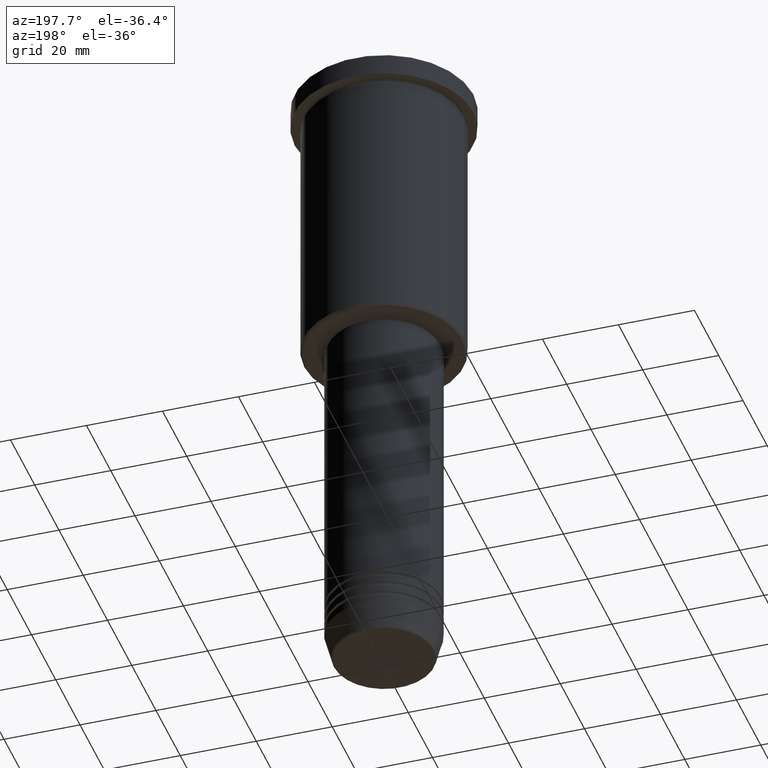
[diagram: clean part render]
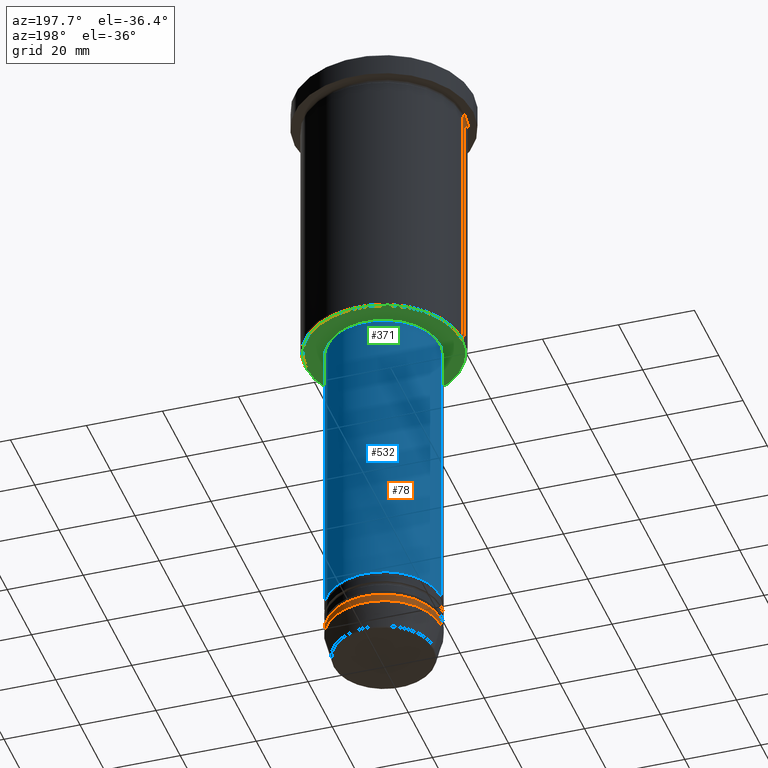
[diagram: same view with three faces highlighted in distinct colors, each labeled with its STEP entity id]
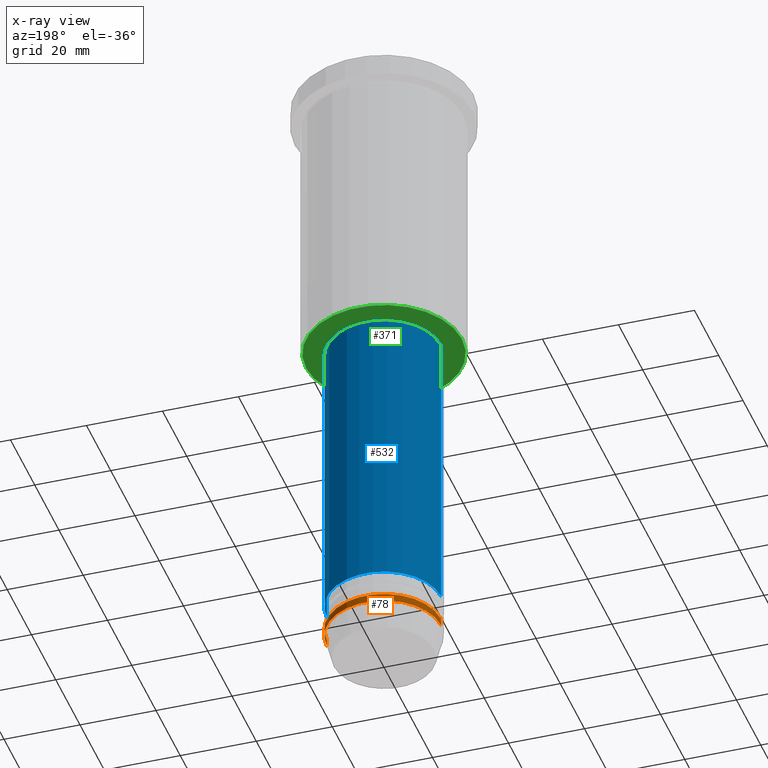
[diagram: x-ray of the same camera — body ghosted, the three highlighted faces saturated]
A machine part, auxiliary view with three faces highlighted in distinct colors.
The next image is the same camera in x-ray (body ghosted, the three faces saturated) — at least one of them is partly hidden behind the body in this view.
Their STEP definitions:

[orange] entity #78 — the highlighted cylindrical surface (partial cylindrical patch) has radius 15 mm, axis along (-0, -0, 1).
#20 = VERTEX_POINT ( 'NONE', #647 ) ;
#78 = ADVANCED_FACE ( 'NONE', ( #586 ), #514, .T. ) ;
#111 = AXIS2_PLACEMENT_3D ( 'NONE', #945, #504, #495 ) ;
#139 = EDGE_LOOP ( 'NONE', ( #839, #230, #757, #984 ) ) ;
#143 = DIRECTION ( 'NONE',  ( -0.000000000000000000, -0.000000000000000000, 1.000000000000000000 ) ) ;
#150 = VECTOR ( 'NONE', #457, 1000.000000000000000 ) ;
#205 = AXIS2_PLACEMENT_3D ( 'NONE', #677, #325, #967 ) ;
#230 = ORIENTED_EDGE ( 'NONE', *, *, #749, .T. ) ;
#286 = VERTEX_POINT ( 'NONE', #957 ) ;
#325 = DIRECTION ( 'NONE',  ( -0.000000000000000000, -0.000000000000000000, 1.000000000000000000 ) ) ;
#370 = CARTESIAN_POINT ( 'NONE',  ( -15.00000000000000000, 1.836970198721029589E-15, -164.0000000000000000 ) ) ;
#440 = CARTESIAN_POINT ( 'NONE',  ( 15.00000000000000000, 0.000000000000000000, 0.000000000000000000 ) ) ;
#448 = CARTESIAN_POINT ( 'NONE',  ( -15.00000000000000000, 1.836970198721029589E-15, 0.000000000000000000 ) ) ;
#457 = DIRECTION ( 'NONE',  ( -0.000000000000000000, -0.000000000000000000, 1.000000000000000000 ) ) ;
#495 = DIRECTION ( 'NONE',  ( 1.000000000000000000, 0.000000000000000000, 0.000000000000000000 ) ) ;
#501 = DIRECTION ( 'NONE',  ( 1.000000000000000000, 0.000000000000000000, 0.000000000000000000 ) ) ;
#504 = DIRECTION ( 'NONE',  ( -0.000000000000000000, -0.000000000000000000, 1.000000000000000000 ) ) ;
#505 = AXIS2_PLACEMENT_3D ( 'NONE', #958, #143, #501 ) ;
#514 = CYLINDRICAL_SURFACE ( 'NONE', #505, 15.00000000000000000 ) ;
#529 = LINE ( 'NONE', #448, #150 ) ;
#586 = FACE_OUTER_BOUND ( 'NONE', #139, .T. ) ;
#610 = CARTESIAN_POINT ( 'NONE',  ( 15.00000000000000000, 0.000000000000000000, -162.0000000000000000 ) ) ;
#617 = VECTOR ( 'NONE', #800, 1000.000000000000000 ) ;
#645 = VERTEX_POINT ( 'NONE', #370 ) ;
#647 = CARTESIAN_POINT ( 'NONE',  ( 15.00000000000000000, 0.000000000000000000, -164.0000000000000000 ) ) ;
#677 = CARTESIAN_POINT ( 'NONE',  ( 0.000000000000000000, 0.000000000000000000, -162.0000000000000000 ) ) ;
#690 = EDGE_CURVE ( 'NONE', #20, #741, #988, .T. ) ;
#741 = VERTEX_POINT ( 'NONE', #610 ) ;
#749 = EDGE_CURVE ( 'NONE', #645, #286, #529, .T. ) ;
#757 = ORIENTED_EDGE ( 'NONE', *, *, #970, .F. ) ;
#800 = DIRECTION ( 'NONE',  ( -0.000000000000000000, -0.000000000000000000, 1.000000000000000000 ) ) ;
#839 = ORIENTED_EDGE ( 'NONE', *, *, #1028, .T. ) ;
#903 = CIRCLE ( 'NONE', #205, 15.00000000000000000 ) ;
#945 = CARTESIAN_POINT ( 'NONE',  ( 0.000000000000000000, 0.000000000000000000, -164.0000000000000000 ) ) ;
#957 = CARTESIAN_POINT ( 'NONE',  ( -15.00000000000000000, 1.836970198721029589E-15, -162.0000000000000000 ) ) ;
#958 = CARTESIAN_POINT ( 'NONE',  ( 0.000000000000000000, 0.000000000000000000, 0.000000000000000000 ) ) ;
#967 = DIRECTION ( 'NONE',  ( 1.000000000000000000, 0.000000000000000000, 0.000000000000000000 ) ) ;
#970 = EDGE_CURVE ( 'NONE', #741, #286, #903, .T. ) ;
#984 = ORIENTED_EDGE ( 'NONE', *, *, #690, .F. ) ;
#988 = LINE ( 'NONE', #440, #617 ) ;
#1028 = EDGE_CURVE ( 'NONE', #20, #645, #1096, .T. ) ;
#1096 = CIRCLE ( 'NONE', #111, 15.00000000000000000 ) ;

[blue] entity #532 — the highlighted cylindrical surface (partial cylindrical patch) has radius 15 mm, axis along (-0, -0, 1).
#41 = FACE_OUTER_BOUND ( 'NONE', #856, .T. ) ;
#54 = VERTEX_POINT ( 'NONE', #138 ) ;
#131 = EDGE_CURVE ( 'NONE', #686, #859, #519, .T. ) ;
#134 = LINE ( 'NONE', #849, #697 ) ;
#138 = CARTESIAN_POINT ( 'NONE',  ( 15.00000000000000000, 0.000000000000000000, -77.00000000000001421 ) ) ;
#141 = CARTESIAN_POINT ( 'NONE',  ( -15.00000000000000000, 1.836970198721029589E-15, 0.000000000000000000 ) ) ;
#156 = CARTESIAN_POINT ( 'NONE',  ( 0.000000000000000000, 0.000000000000000000, -77.00000000000001421 ) ) ;
#168 = DIRECTION ( 'NONE',  ( 1.000000000000000000, 0.000000000000000000, 0.000000000000000000 ) ) ;
#214 = DIRECTION ( 'NONE',  ( -0.000000000000000000, -0.000000000000000000, 1.000000000000000000 ) ) ;
#249 = ORIENTED_EDGE ( 'NONE', *, *, #591, .T. ) ;
#321 = AXIS2_PLACEMENT_3D ( 'NONE', #1128, #1029, #928 ) ;
#369 = ORIENTED_EDGE ( 'NONE', *, *, #615, .F. ) ;
#416 = DIRECTION ( 'NONE',  ( -0.000000000000000000, -0.000000000000000000, 1.000000000000000000 ) ) ;
#519 = LINE ( 'NONE', #141, #900 ) ;
#532 = ADVANCED_FACE ( 'NONE', ( #41 ), #643, .T. ) ;
#546 = EDGE_CURVE ( 'NONE', #548, #54, #134, .T. ) ;
#548 = VERTEX_POINT ( 'NONE', #652 ) ;
#591 = EDGE_CURVE ( 'NONE', #548, #686, #816, .T. ) ;
#615 = EDGE_CURVE ( 'NONE', #54, #859, #661, .T. ) ;
#638 = CARTESIAN_POINT ( 'NONE',  ( -15.00000000000000000, 1.836970198721029589E-15, -77.00000000000001421 ) ) ;
#643 = CYLINDRICAL_SURFACE ( 'NONE', #963, 15.00000000000000000 ) ;
#652 = CARTESIAN_POINT ( 'NONE',  ( 15.00000000000000000, 0.000000000000000000, -154.9999999999999716 ) ) ;
#661 = CIRCLE ( 'NONE', #882, 15.00000000000000000 ) ;
#686 = VERTEX_POINT ( 'NONE', #1181 ) ;
#697 = VECTOR ( 'NONE', #948, 1000.000000000000000 ) ;
#816 = CIRCLE ( 'NONE', #321, 15.00000000000000000 ) ;
#840 = ORIENTED_EDGE ( 'NONE', *, *, #131, .T. ) ;
#847 = ORIENTED_EDGE ( 'NONE', *, *, #546, .F. ) ;
#849 = CARTESIAN_POINT ( 'NONE',  ( 15.00000000000000000, 0.000000000000000000, 0.000000000000000000 ) ) ;
#856 = EDGE_LOOP ( 'NONE', ( #249, #840, #369, #847 ) ) ;
#859 = VERTEX_POINT ( 'NONE', #638 ) ;
#882 = AXIS2_PLACEMENT_3D ( 'NONE', #156, #416, #973 ) ;
#900 = VECTOR ( 'NONE', #1142, 1000.000000000000000 ) ;
#928 = DIRECTION ( 'NONE',  ( 1.000000000000000000, 0.000000000000000000, 0.000000000000000000 ) ) ;
#948 = DIRECTION ( 'NONE',  ( -0.000000000000000000, -0.000000000000000000, 1.000000000000000000 ) ) ;
#963 = AXIS2_PLACEMENT_3D ( 'NONE', #1034, #214, #168 ) ;
#973 = DIRECTION ( 'NONE',  ( 1.000000000000000000, 0.000000000000000000, 0.000000000000000000 ) ) ;
#1029 = DIRECTION ( 'NONE',  ( -0.000000000000000000, -0.000000000000000000, 1.000000000000000000 ) ) ;
#1034 = CARTESIAN_POINT ( 'NONE',  ( 0.000000000000000000, 0.000000000000000000, 0.000000000000000000 ) ) ;
#1128 = CARTESIAN_POINT ( 'NONE',  ( 0.000000000000000000, 0.000000000000000000, -154.9999999999999716 ) ) ;
#1142 = DIRECTION ( 'NONE',  ( -0.000000000000000000, -0.000000000000000000, 1.000000000000000000 ) ) ;
#1181 = CARTESIAN_POINT ( 'NONE',  ( -15.00000000000000000, 1.836970198721029589E-15, -154.9999999999999716 ) ) ;

[green] entity #371 — the highlighted planar face has unit normal (0, 0, -1).
#26 = CIRCLE ( 'NONE', #166, 14.49999999999999822 ) ;
#37 = DIRECTION ( 'NONE',  ( 0.000000000000000000, 0.000000000000000000, -1.000000000000000000 ) ) ;
#53 = DIRECTION ( 'NONE',  ( -0.000000000000000000, -0.000000000000000000, 1.000000000000000000 ) ) ;
#82 = EDGE_CURVE ( 'NONE', #933, #255, #26, .T. ) ;
#83 = FACE_OUTER_BOUND ( 'NONE', #991, .T. ) ;
#97 = PLANE ( 'NONE',  #396 ) ;
#166 = AXIS2_PLACEMENT_3D ( 'NONE', #787, #53, #1149 ) ;
#222 = CIRCLE ( 'NONE', #472, 20.49999999999998934 ) ;
#225 = DIRECTION ( 'NONE',  ( 0.000000000000000000, 0.000000000000000000, -1.000000000000000000 ) ) ;
#255 = VERTEX_POINT ( 'NONE', #344 ) ;
#295 = CARTESIAN_POINT ( 'NONE',  ( 0.000000000000000000, 21.00000000000000000, -76.00000000000000000 ) ) ;
#296 = DIRECTION ( 'NONE',  ( -0.000000000000000000, -0.000000000000000000, 1.000000000000000000 ) ) ;
#299 = ORIENTED_EDGE ( 'NONE', *, *, #412, .T. ) ;
#344 = CARTESIAN_POINT ( 'NONE',  ( -14.49999999999999822, 1.775737858763662015E-15, -76.00000000000000000 ) ) ;
#371 = ADVANCED_FACE ( 'NONE', ( #83, #625 ), #97, .T. ) ;
#396 = AXIS2_PLACEMENT_3D ( 'NONE', #295, #842, #908 ) ;
#412 = EDGE_CURVE ( 'NONE', #1113, #669, #815, .T. ) ;
#446 = ORIENTED_EDGE ( 'NONE', *, *, #82, .T. ) ;
#472 = AXIS2_PLACEMENT_3D ( 'NONE', #1019, #37, #936 ) ;
#571 = EDGE_CURVE ( 'NONE', #669, #1113, #222, .T. ) ;
#624 = CARTESIAN_POINT ( 'NONE',  ( 20.49999999999998934, 0.000000000000000000, -76.00000000000000000 ) ) ;
#625 = FACE_BOUND ( 'NONE', #1172, .T. ) ;
#632 = CARTESIAN_POINT ( 'NONE',  ( -20.49999999999998934, 2.541142108230757480E-15, -76.00000000000000000 ) ) ;
#660 = DIRECTION ( 'NONE',  ( 1.000000000000000000, 0.000000000000000000, 0.000000000000000000 ) ) ;
#669 = VERTEX_POINT ( 'NONE', #632 ) ;
#713 = CIRCLE ( 'NONE', #986, 14.49999999999999822 ) ;
#773 = CARTESIAN_POINT ( 'NONE',  ( 14.49999999999999822, 0.000000000000000000, -76.00000000000000000 ) ) ;
#787 = CARTESIAN_POINT ( 'NONE',  ( 0.000000000000000000, 0.000000000000000000, -76.00000000000000000 ) ) ;
#815 = CIRCLE ( 'NONE', #1135, 20.49999999999998934 ) ;
#842 = DIRECTION ( 'NONE',  ( 0.000000000000000000, 0.000000000000000000, -1.000000000000000000 ) ) ;
#899 = EDGE_CURVE ( 'NONE', #255, #933, #713, .T. ) ;
#908 = DIRECTION ( 'NONE',  ( -1.000000000000000000, 0.000000000000000000, -0.000000000000000000 ) ) ;
#933 = VERTEX_POINT ( 'NONE', #773 ) ;
#936 = DIRECTION ( 'NONE',  ( -1.000000000000000000, 0.000000000000000000, 0.000000000000000000 ) ) ;
#986 = AXIS2_PLACEMENT_3D ( 'NONE', #1112, #296, #660 ) ;
#991 = EDGE_LOOP ( 'NONE', ( #299, #1036 ) ) ;
#1019 = CARTESIAN_POINT ( 'NONE',  ( 0.000000000000000000, 0.000000000000000000, -76.00000000000000000 ) ) ;
#1036 = ORIENTED_EDGE ( 'NONE', *, *, #571, .T. ) ;
#1042 = DIRECTION ( 'NONE',  ( -1.000000000000000000, 0.000000000000000000, 0.000000000000000000 ) ) ;
#1112 = CARTESIAN_POINT ( 'NONE',  ( 0.000000000000000000, 0.000000000000000000, -76.00000000000000000 ) ) ;
#1113 = VERTEX_POINT ( 'NONE', #624 ) ;
#1124 = ORIENTED_EDGE ( 'NONE', *, *, #899, .T. ) ;
#1131 = CARTESIAN_POINT ( 'NONE',  ( 0.000000000000000000, 0.000000000000000000, -76.00000000000000000 ) ) ;
#1135 = AXIS2_PLACEMENT_3D ( 'NONE', #1131, #225, #1042 ) ;
#1149 = DIRECTION ( 'NONE',  ( 1.000000000000000000, 0.000000000000000000, 0.000000000000000000 ) ) ;
#1172 = EDGE_LOOP ( 'NONE', ( #446, #1124 ) ) ;